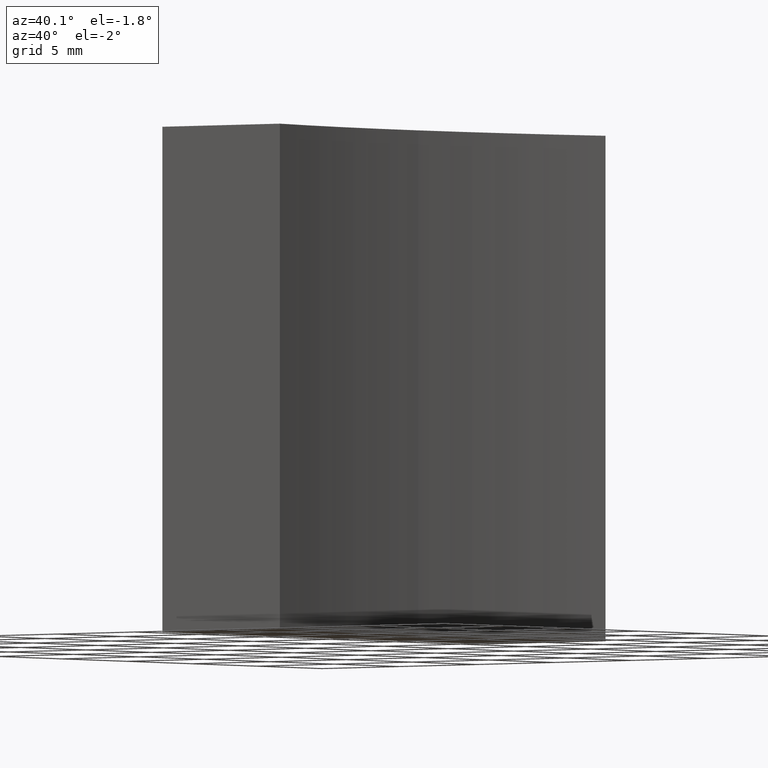
[diagram: clean part render]
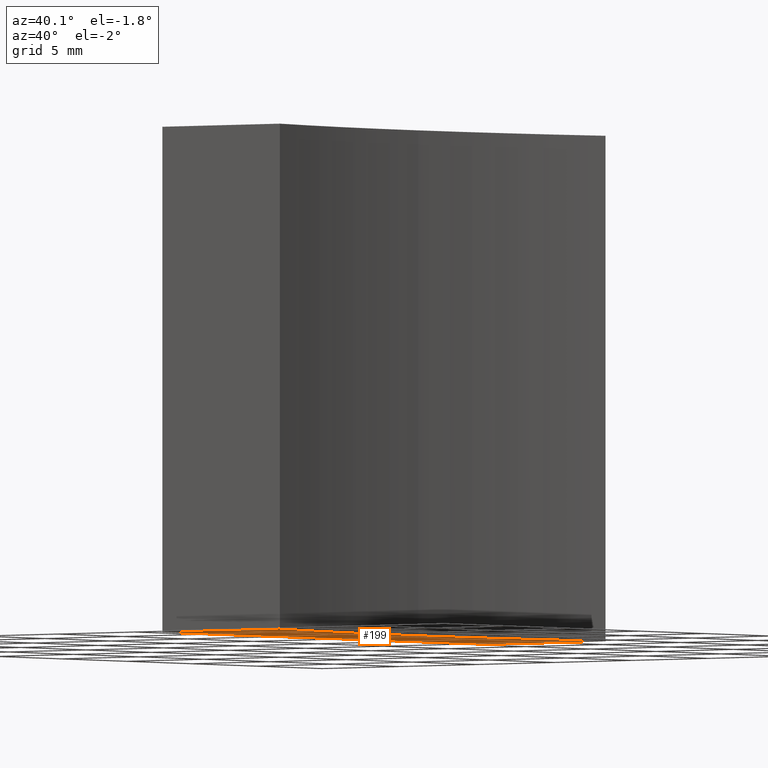
[diagram: same view with one face highlighted and labeled with its STEP entity id]
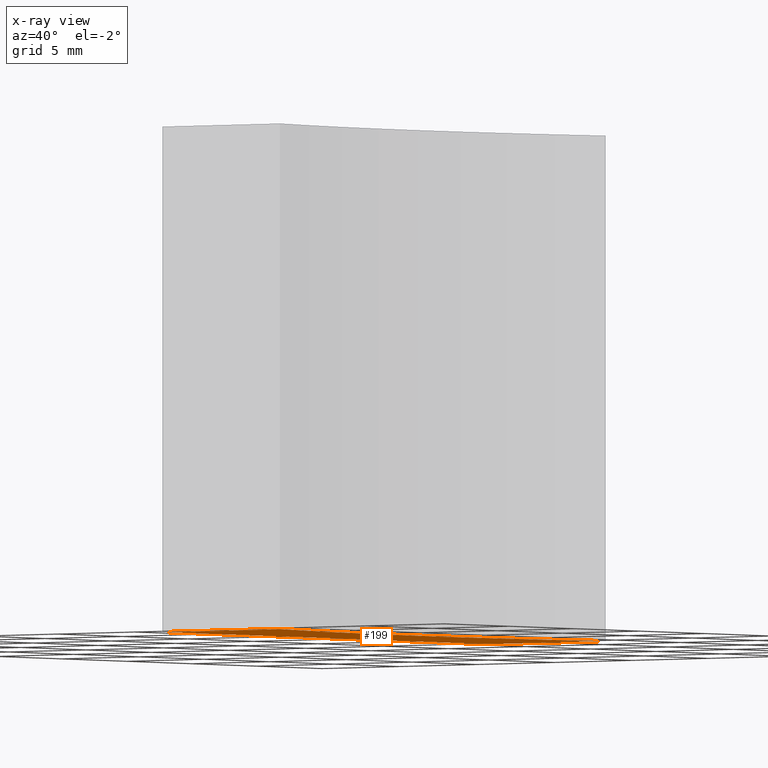
[diagram: x-ray of the same camera — body ghosted, the highlighted face saturated]
A machine part, auxiliary view. The second image highlights one B-rep face of the part: STEP entity #199.
The next image is the same camera in x-ray: the body ghosted, the highlighted face saturated — about 0% of this face is hidden behind the body in this view.
In plain terms, the highlighted planar face has unit normal (0, 0, 1).
Its self-contained STEP definition (entity closure, byte-faithful):
#1 = VERTEX_POINT ( 'NONE', #62 ) ;
#2 = CIRCLE ( 'NONE', #221, 49.99999999999998600 ) ;
#11 = ORIENTED_EDGE ( 'NONE', *, *, #134, .F. ) ;
#12 = DIRECTION ( 'NONE',  ( 0.0000000000000000000, 0.0000000000000000000, 1.000000000000000000 ) ) ;
#15 = CARTESIAN_POINT ( 'NONE',  ( 340.7071356311532200, 66.85792926776700500, 0.0000000000000000000 ) ) ;
#20 = ORIENTED_EDGE ( 'NONE', *, *, #144, .F. ) ;
#23 = EDGE_CURVE ( 'NONE', #109, #1, #169, .T. ) ;
#26 = EDGE_LOOP ( 'NONE', ( #20, #162, #59, #208, #11 ) ) ;
#27 = CARTESIAN_POINT ( 'NONE',  ( 284.7071356312820900, 66.85792926776707600, 0.0000000000000000000 ) ) ;
#29 = DIRECTION ( 'NONE',  ( 1.000000000000000000, 0.0000000000000000000, 0.0000000000000000000 ) ) ;
#42 = AXIS2_PLACEMENT_3D ( 'NONE', #15, #12, #159 ) ;
#49 = CARTESIAN_POINT ( 'NONE',  ( 284.7071356312820900, 79.35792926776707600, 0.0000000000000000000 ) ) ;
#50 = DIRECTION ( 'NONE',  ( -0.0000000000000000000, -0.0000000000000000000, -1.000000000000000000 ) ) ;
#59 = ORIENTED_EDGE ( 'NONE', *, *, #228, .F. ) ;
#62 = CARTESIAN_POINT ( 'NONE',  ( 284.7071356312820900, 54.35792926776707600, 0.0000000000000000000 ) ) ;
#64 = CARTESIAN_POINT ( 'NONE',  ( 290.7071356311532200, 66.85792926776700500, 0.0000000000000000000 ) ) ;
#76 = VECTOR ( 'NONE', #175, 1000.000000000000000 ) ;
#82 = VERTEX_POINT ( 'NONE', #64 ) ;
#84 = CARTESIAN_POINT ( 'NONE',  ( 340.7071356311532200, 66.85792926776700500, 0.0000000000000000000 ) ) ;
#103 = DIRECTION ( 'NONE',  ( -1.000000000000000000, -1.828982809132883200E-015, -0.0000000000000000000 ) ) ;
#104 = CARTESIAN_POINT ( 'NONE',  ( 292.2948438035605200, 54.35792926776711200, 0.0000000000000000000 ) ) ;
#107 = VECTOR ( 'NONE', #103, 1000.000000000000000 ) ;
#109 = VERTEX_POINT ( 'NONE', #49 ) ;
#120 = DIRECTION ( 'NONE',  ( 1.000000000000000000, 0.0000000000000000000, 0.0000000000000000000 ) ) ;
#124 = FACE_OUTER_BOUND ( 'NONE', #26, .T. ) ;
#128 = EDGE_CURVE ( 'NONE', #82, #136, #2, .T. ) ;
#132 = AXIS2_PLACEMENT_3D ( 'NONE', #201, #50, #120 ) ;
#133 = VERTEX_POINT ( 'NONE', #104 ) ;
#134 = EDGE_CURVE ( 'NONE', #133, #82, #135, .T. ) ;
#135 = CIRCLE ( 'NONE', #132, 49.99999999999998600 ) ;
#136 = VERTEX_POINT ( 'NONE', #178 ) ;
#144 = EDGE_CURVE ( 'NONE', #1, #133, #177, .T. ) ;
#159 = DIRECTION ( 'NONE',  ( 1.000000000000000000, 0.0000000000000000000, -0.0000000000000000000 ) ) ;
#162 = ORIENTED_EDGE ( 'NONE', *, *, #23, .F. ) ;
#169 = LINE ( 'NONE', #27, #218 ) ;
#175 = DIRECTION ( 'NONE',  ( 1.000000000000000000, 3.657965618265793200E-015, -0.0000000000000000000 ) ) ;
#177 = LINE ( 'NONE', #179, #76 ) ;
#178 = CARTESIAN_POINT ( 'NONE',  ( 292.2948438035605800, 79.35792926776709100, 0.0000000000000000000 ) ) ;
#179 = CARTESIAN_POINT ( 'NONE',  ( 292.2948438035605200, 54.35792926776710500, 0.0000000000000000000 ) ) ;
#199 = ADVANCED_FACE ( 'NONE', ( #124 ), #238, .F. ) ;
#201 = CARTESIAN_POINT ( 'NONE',  ( 340.7071356311532200, 66.85792926776700500, 0.0000000000000000000 ) ) ;
#207 = LINE ( 'NONE', #217, #107 ) ;
#208 = ORIENTED_EDGE ( 'NONE', *, *, #128, .F. ) ;
#217 = CARTESIAN_POINT ( 'NONE',  ( 284.7071356312820900, 79.35792926776707600, 0.0000000000000000000 ) ) ;
#218 = VECTOR ( 'NONE', #233, 1000.000000000000000 ) ;
#219 = DIRECTION ( 'NONE',  ( -0.0000000000000000000, -0.0000000000000000000, -1.000000000000000000 ) ) ;
#221 = AXIS2_PLACEMENT_3D ( 'NONE', #84, #219, #29 ) ;
#228 = EDGE_CURVE ( 'NONE', #136, #109, #207, .T. ) ;
#233 = DIRECTION ( 'NONE',  ( -0.0000000000000000000, -1.000000000000000000, -0.0000000000000000000 ) ) ;
#238 = PLANE ( 'NONE',  #42 ) ;